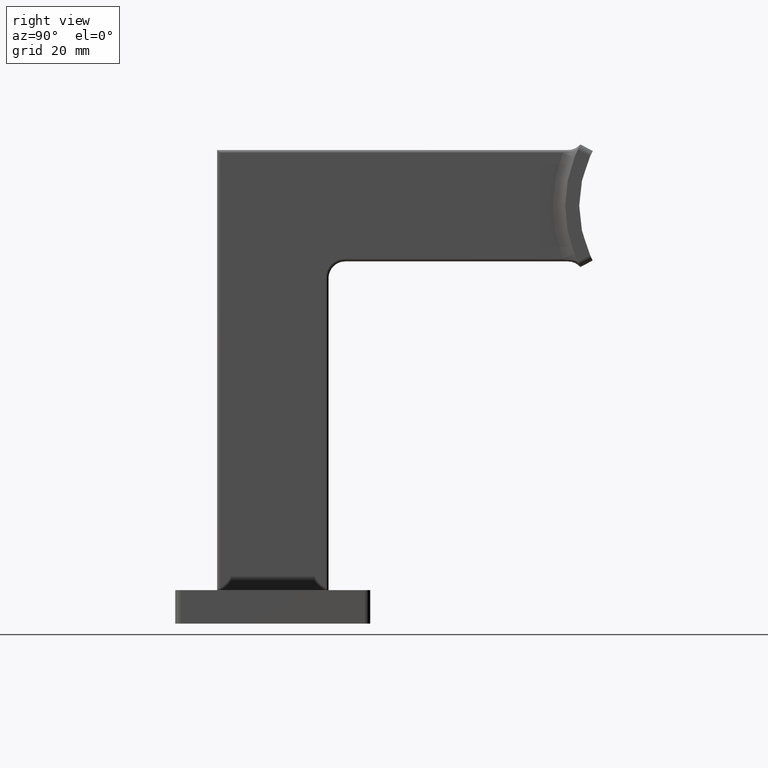
[diagram: clean part render]
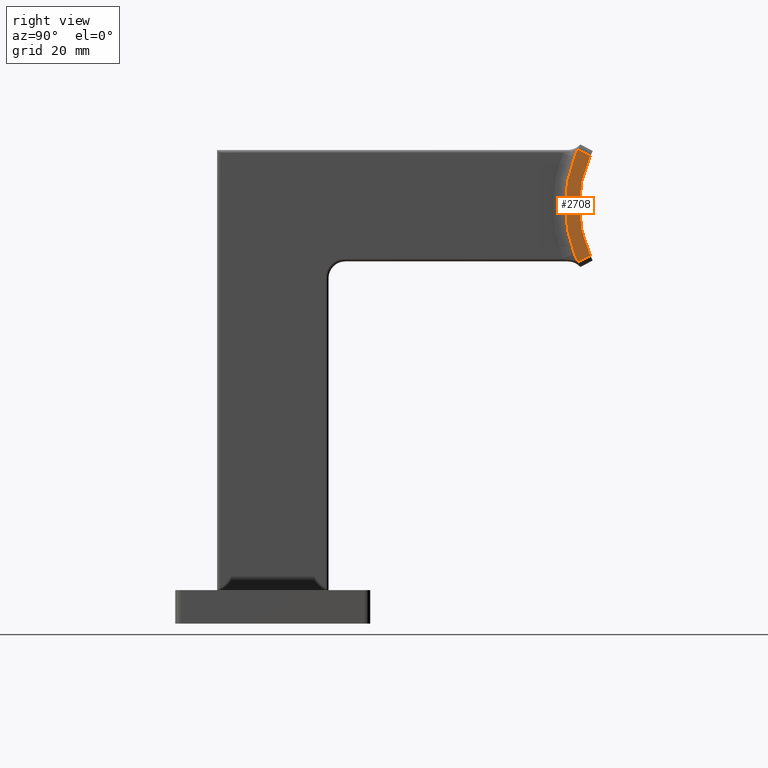
[diagram: same view with one face highlighted and labeled with its STEP entity id]
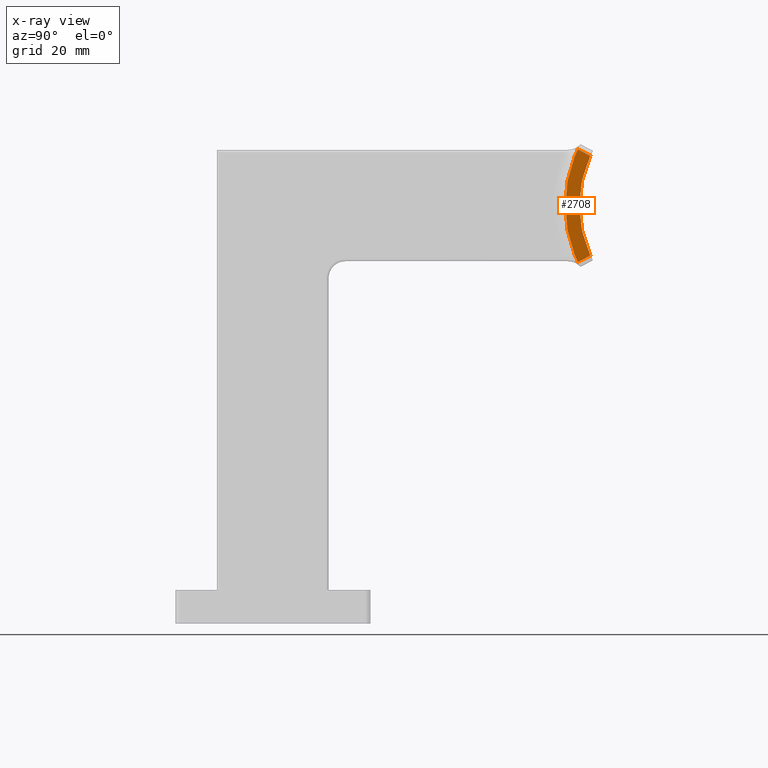
[diagram: x-ray of the same camera — body ghosted, the highlighted face saturated]
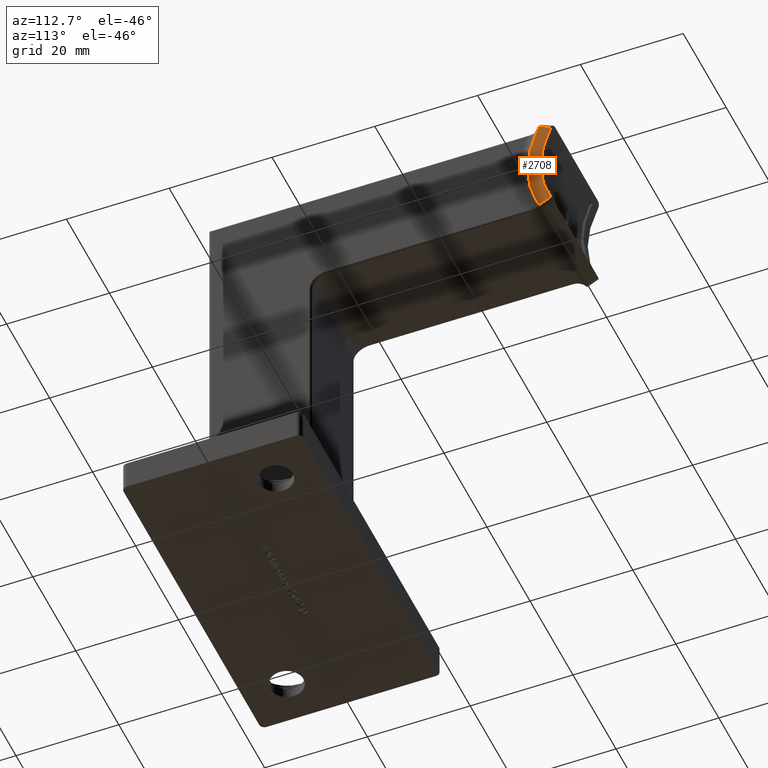
[diagram: same view with one face highlighted and labeled with its STEP entity id]
A machine part, right view. The second image highlights one B-rep face of the part: STEP entity #2708.
The next image is the same camera in x-ray: the body ghosted, the highlighted face saturated — about 0% of this face is hidden behind the body in this view.
A second angle (auxiliary view) of the same face is appended — the face is thin or edge-on in the first view.
In plain terms, the highlighted planar face has unit normal (1, 0, 0).
Its self-contained STEP definition (entity closure, byte-faithful):
#218 = DIRECTION ( 'NONE',  ( 0.000000000000000000, 0.000000000000000000, -1.000000000000000000 ) ) ;
#556 = EDGE_CURVE ( 'NONE', #4506, #4821, #9982, .T. ) ;
#570 = CARTESIAN_POINT ( 'NONE',  ( 11.00000000000000000, 56.95765838391542957, 66.04610201477032660 ) ) ;
#1199 = CARTESIAN_POINT ( 'NONE',  ( 11.00000000000000000, 54.76194256754155276, 85.10443929778453764 ) ) ;
#1397 = CIRCLE ( 'NONE', #9871, 21.19999999999999574 ) ;
#1492 = DIRECTION ( 'NONE',  ( 1.000000000000000000, 0.000000000000000000, 0.000000000000000000 ) ) ;
#1652 = EDGE_CURVE ( 'NONE', #14210, #10215, #9954, .T. ) ;
#1657 = DIRECTION ( 'NONE',  ( 1.000000000000000000, 0.000000000000000000, 0.000000000000000000 ) ) ;
#1981 = FACE_OUTER_BOUND ( 'NONE', #3444, .T. ) ;
#2017 = DIRECTION ( 'NONE',  ( 1.000000000000000000, 0.000000000000000000, 0.000000000000000000 ) ) ;
#2048 = DIRECTION ( 'NONE',  ( -0.000000000000000000, 0.8857644620277108638, 0.4641350210970509593 ) ) ;
#2069 = CARTESIAN_POINT ( 'NONE',  ( 11.00000000000000000, 56.97856068852473754, 83.94294530874881843 ) ) ;
#2708 = ADVANCED_FACE ( 'NONE', ( #1981 ), #9646, .T. ) ;
#2838 = EDGE_CURVE ( 'NONE', #12432, #11702, #14935, .T. ) ;
#2853 = AXIS2_PLACEMENT_3D ( 'NONE', #5466, #2017, #9095 ) ;
#2914 = AXIS2_PLACEMENT_3D ( 'NONE', #13038, #1492, #10738 ) ;
#3364 = EDGE_CURVE ( 'NONE', #11702, #4506, #1397, .T. ) ;
#3444 = EDGE_LOOP ( 'NONE', ( #12779, #12303, #10604, #6143, #14226, #12711 ) ) ;
#4292 = CARTESIAN_POINT ( 'NONE',  ( 11.00000000000000000, 54.14708834403752746, 66.31903879202802443 ) ) ;
#4506 = VERTEX_POINT ( 'NONE', #2069 ) ;
#4821 = VERTEX_POINT ( 'NONE', #1199 ) ;
#4940 = CARTESIAN_POINT ( 'NONE',  ( 11.00000000000000000, 54.76194256754155276, 64.89556070221547657 ) ) ;
#5421 = CARTESIAN_POINT ( 'NONE',  ( 11.00000000000000000, 54.14708834403752746, 83.68096120797197557 ) ) ;
#5466 = CARTESIAN_POINT ( 'NONE',  ( 11.00000000000000000, 76.20000000000000284, 75.00000000000000000 ) ) ;
#5735 = CIRCLE ( 'NONE', #2853, 23.69999999999999218 ) ;
#6143 = ORIENTED_EDGE ( 'NONE', *, *, #2838, .T. ) ;
#6398 = DIRECTION ( 'NONE',  ( 0.000000000000000000, -0.8857644620277108638, 0.4641350210970509593 ) ) ;
#6694 = DIRECTION ( 'NONE',  ( 0.000000000000000000, 0.000000000000000000, -1.000000000000000000 ) ) ;
#6900 = VECTOR ( 'NONE', #6398, 1000.000000000000114 ) ;
#7045 = CARTESIAN_POINT ( 'NONE',  ( 11.00000000000000000, 54.74324722884615824, 85.11423553797229147 ) ) ;
#7680 = EDGE_CURVE ( 'NONE', #4821, #14210, #5735, .T. ) ;
#8714 = DIRECTION ( 'NONE',  ( 0.000000000000000000, 0.000000000000000000, -1.000000000000000000 ) ) ;
#9074 = CARTESIAN_POINT ( 'NONE',  ( 11.00000000000000000, 76.20000000000000284, 75.00000000000000000 ) ) ;
#9095 = DIRECTION ( 'NONE',  ( 0.000000000000000000, 0.000000000000000000, -1.000000000000000000 ) ) ;
#9646 = PLANE ( 'NONE',  #2914 ) ;
#9735 = VECTOR ( 'NONE', #2048, 1000.000000000000114 ) ;
#9871 = AXIS2_PLACEMENT_3D ( 'NONE', #9074, #13587, #6694 ) ;
#9954 = CIRCLE ( 'NONE', #14785, 23.69999999999999218 ) ;
#9982 = LINE ( 'NONE', #7045, #6900 ) ;
#10215 = VERTEX_POINT ( 'NONE', #4292 ) ;
#10604 = ORIENTED_EDGE ( 'NONE', *, *, #11531, .T. ) ;
#10738 = DIRECTION ( 'NONE',  ( 0.000000000000000000, 0.000000000000000000, -1.000000000000000000 ) ) ;
#10793 = CARTESIAN_POINT ( 'NONE',  ( 11.00000000000000000, 76.20000000000000284, 75.00000000000000000 ) ) ;
#10951 = CARTESIAN_POINT ( 'NONE',  ( 11.00000000000000000, 76.20000000000000284, 75.00000000000000000 ) ) ;
#11083 = CIRCLE ( 'NONE', #13678, 23.69999999999999218 ) ;
#11531 = EDGE_CURVE ( 'NONE', #10215, #12432, #11083, .T. ) ;
#11702 = VERTEX_POINT ( 'NONE', #11801 ) ;
#11801 = CARTESIAN_POINT ( 'NONE',  ( 11.00000000000000000, 56.97856068852473754, 66.05705469125116736 ) ) ;
#12303 = ORIENTED_EDGE ( 'NONE', *, *, #1652, .T. ) ;
#12432 = VERTEX_POINT ( 'NONE', #4940 ) ;
#12711 = ORIENTED_EDGE ( 'NONE', *, *, #556, .T. ) ;
#12779 = ORIENTED_EDGE ( 'NONE', *, *, #7680, .T. ) ;
#13038 = CARTESIAN_POINT ( 'NONE',  ( 11.00000000000000000, 76.20000000000000284, 75.00000000000000000 ) ) ;
#13587 = DIRECTION ( 'NONE',  ( -1.000000000000000000, -0.000000000000000000, -0.000000000000000000 ) ) ;
#13678 = AXIS2_PLACEMENT_3D ( 'NONE', #10793, #14262, #218 ) ;
#14210 = VERTEX_POINT ( 'NONE', #5421 ) ;
#14226 = ORIENTED_EDGE ( 'NONE', *, *, #3364, .T. ) ;
#14262 = DIRECTION ( 'NONE',  ( 1.000000000000000000, 0.000000000000000000, 0.000000000000000000 ) ) ;
#14785 = AXIS2_PLACEMENT_3D ( 'NONE', #10951, #1657, #8714 ) ;
#14935 = LINE ( 'NONE', #570, #9735 ) ;